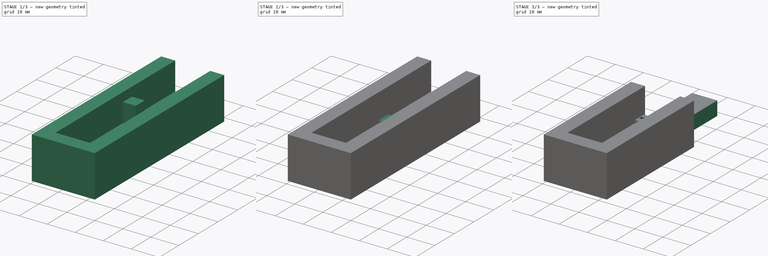
[diagram: build sequence overview — one tinted view per stage of 3, left to right]
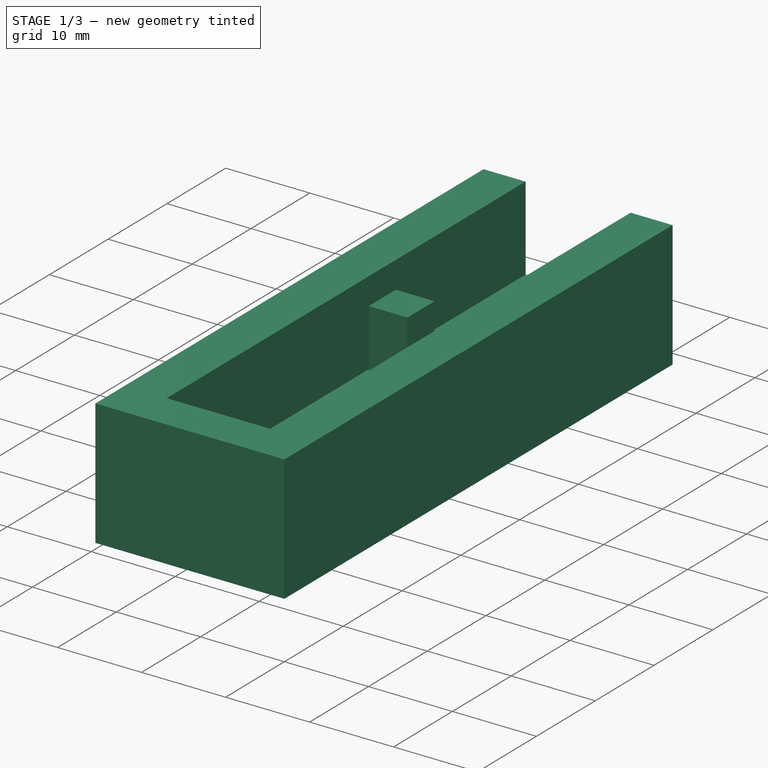
[diagram: stage 1 of 3 — iso view after this stage's code; geometry added in this stage tinted green]
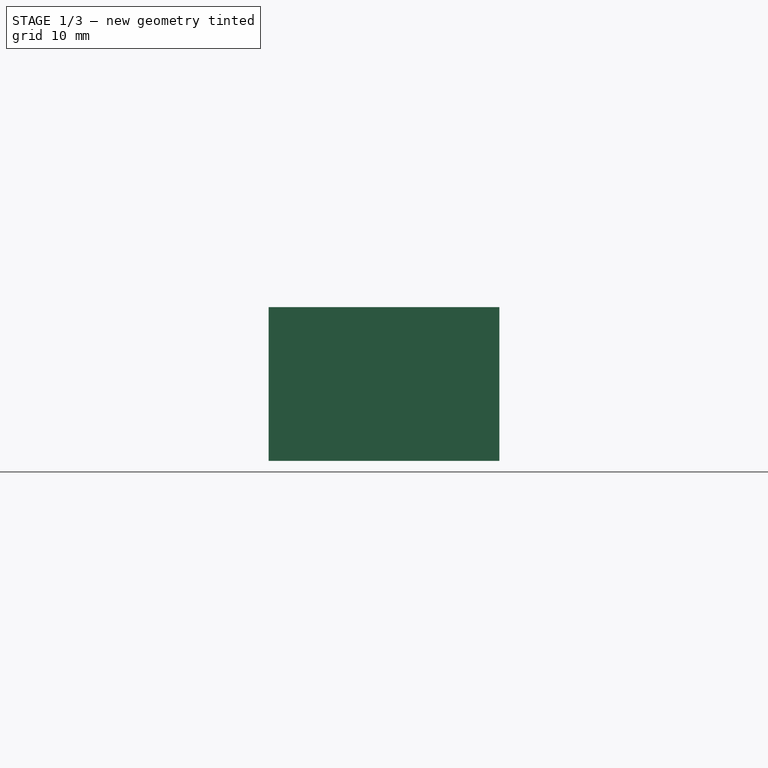
[diagram: stage 1 of 3 — front view after this stage's code; geometry added in this stage tinted green]
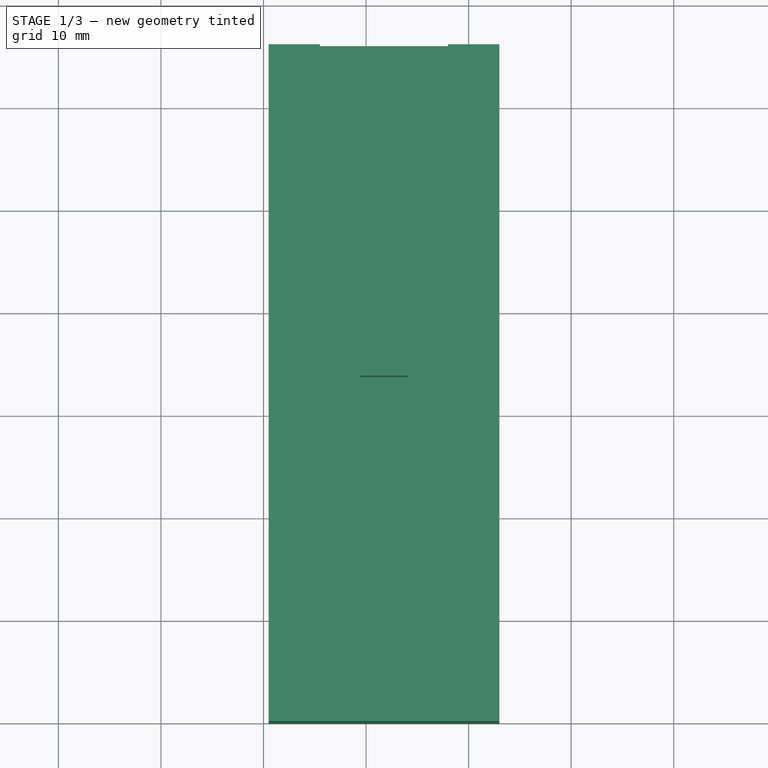
[diagram: stage 1 of 3 — top view after this stage's code; geometry added in this stage tinted green]
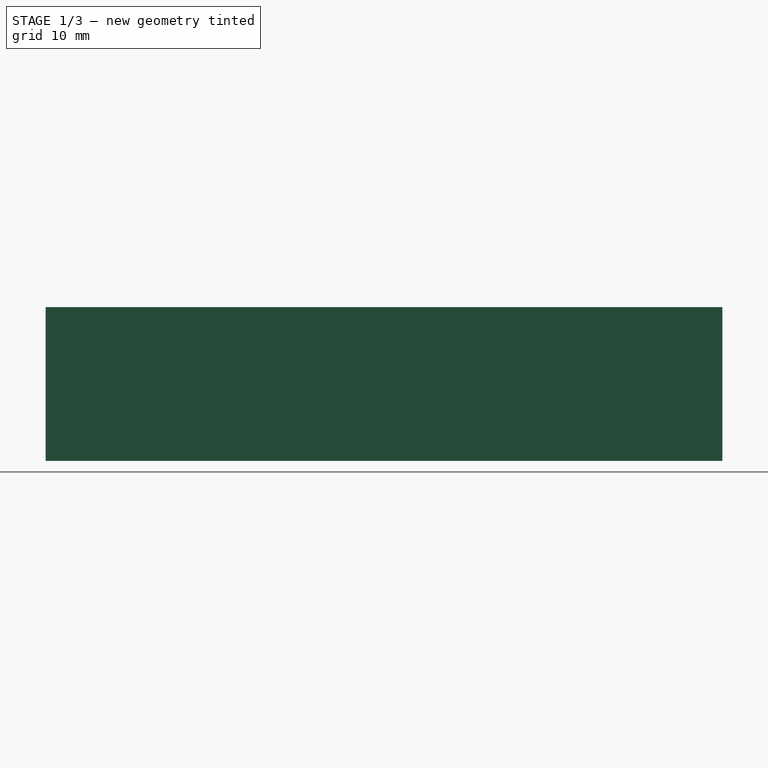
[diagram: stage 1 of 3 — right view after this stage's code; geometry added in this stage tinted green]
FCSTD DOCUMENT  (FreeCAD 0.20R29603 (Git))
Label: WhiteKey3
License: All rights reserved
LicenseURL: http://en.wikipedia.org/wiki/All_rights_reserved
objects: Sketcher::SketchObject×7, PartDesign::Pocket×5, PartDesign::Pad×1, PartDesign::Plane×1, PartDesign::Body×1
note: 21 computed .brp shape members not serialized (recipe doc carries the construction recipe); baked Part::Feature solids carry a one-line shape summary decoded from their .brp

FEATURE [Sketcher::SketchObject] Sketch
  FullyConstrained = true
  MapMode = 5
  Support = -> [XY_Plane]
  sketch-geometry (4):
    g0: LineSegment StartX=40.5 StartY=-34 StartZ=0 EndX=63 EndY=-34 EndZ=0
    g1: LineSegment StartX=63 StartY=-34 StartZ=0 EndX=63 EndY=-100 EndZ=0
    g2: LineSegment StartX=63 StartY=-100 StartZ=0 EndX=40.5 EndY=-100 EndZ=0
    g3: LineSegment StartX=40.5 StartY=-100 StartZ=0 EndX=40.5 EndY=-34 EndZ=0
  constraints (12):
    c: Coincident(g0,g1)
    c: Coincident(g1,g2)
    c: Coincident(g2,g3)
    c: Coincident(g3,g0)
    c: Horizontal(g0)
    c: Horizontal(g2)
    c: Vertical(g1)
    c: Vertical(g3)
    c: DistanceX(g-1,g0) = 40.5
    c: DistanceY(g0,g-1) = 34
    c: DistanceX(g-1,g1) = 63
    c: DistanceY(g1,g-1) = 100
FEATURE [PartDesign::Pad] Pad
  Direction = (0,0,1)
  Length = 15
  Length2 = 10
  Profile = -> Sketch
  ReferenceAxis = -> Sketch [N_Axis]
  Type = 0
FEATURE [PartDesign::Plane] DatumPlane
  Length = 97.1581
  MapMode = 5
  Placement = pos=(0,0,15) rot=(0,0,1;0rad)
  ResizeMode = 0
  Support = -> [Pad]
  Width = 109.158
FEATURE [Sketcher::SketchObject] Sketch001
  FullyConstrained = true
  MapMode = 5
  Placement = pos=(0,0,15) rot=(0,0,1;0rad)
  Support = -> [DatumPlane]
  sketch-geometry (9):
    g0: LineSegment StartX=45.5 StartY=-20 StartZ=0 EndX=58 EndY=-20 EndZ=0
    g1: LineSegment StartX=58 StartY=-20 StartZ=0 EndX=58 EndY=-95 EndZ=0
    g2: LineSegment StartX=58 StartY=-95 StartZ=0 EndX=45.5 EndY=-95 EndZ=0
    g3: LineSegment StartX=45.5 StartY=-95 StartZ=0 EndX=45.5 EndY=-20 EndZ=0
    g4: LineSegment StartX=49.45 StartY=-61.7 StartZ=0 EndX=54.05 EndY=-61.7 EndZ=0
    g5: LineSegment StartX=54.05 StartY=-61.7 StartZ=0 EndX=54.05 EndY=-66.3 EndZ=0
    g6: LineSegment StartX=54.05 StartY=-66.3 StartZ=0 EndX=49.45 EndY=-66.3 EndZ=0
    g7: LineSegment StartX=49.45 StartY=-66.3 StartZ=0 EndX=49.45 EndY=-61.7 EndZ=0
    g8: GeomPoint X=51.75 Y=-64 Z=0
  constraints (25):
    c: Coincident(g0,g1)
    c: Coincident(g1,g2)
    c: Coincident(g2,g3)
    c: Coincident(g3,g0)
    c: Horizontal(g0)
    c: Horizontal(g2)
    c: Vertical(g1)
    c: Vertical(g3)
    c: DistanceX(g-1,g2) = 45.5
    c: DistanceY(g2,g-1) = 95
    c: DistanceX(g-1,g0) = 58
    c: DistanceY(g0,g-1) = 20
    c: Coincident(g4,g5)
    c: Coincident(g5,g6)
    c: Coincident(g6,g7)
    c: Coincident(g7,g4)
    c: Horizontal(g4)
    c: Horizontal(g6)
    c: Vertical(g5)
    c: Vertical(g7)
    c: Symmetric(g4,g6,g8)
    c: DistanceX(g4,g4) = 4.6
    c: DistanceY(g5,g4) = 4.6
    c: DistanceX(g-1,g8) = 51.75
    c: DistanceY(g8,g-1) = 64
FEATURE [PartDesign::Pocket] Pocket
  BaseFeature = -> Pad
  Direction = (0,0,-1)
  Length = 10
  Length2 = 5
  Profile = -> Sketch001
  ReferenceAxis = -> Sketch001 [N_Axis]
  Type = 0
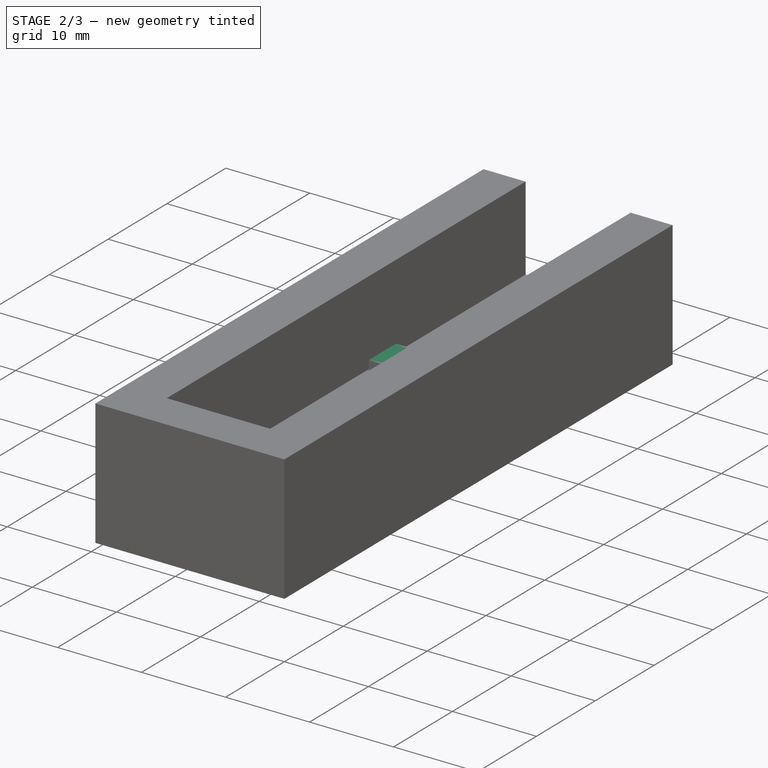
[diagram: stage 2 of 3 — iso view after this stage's code; geometry added in this stage tinted green]
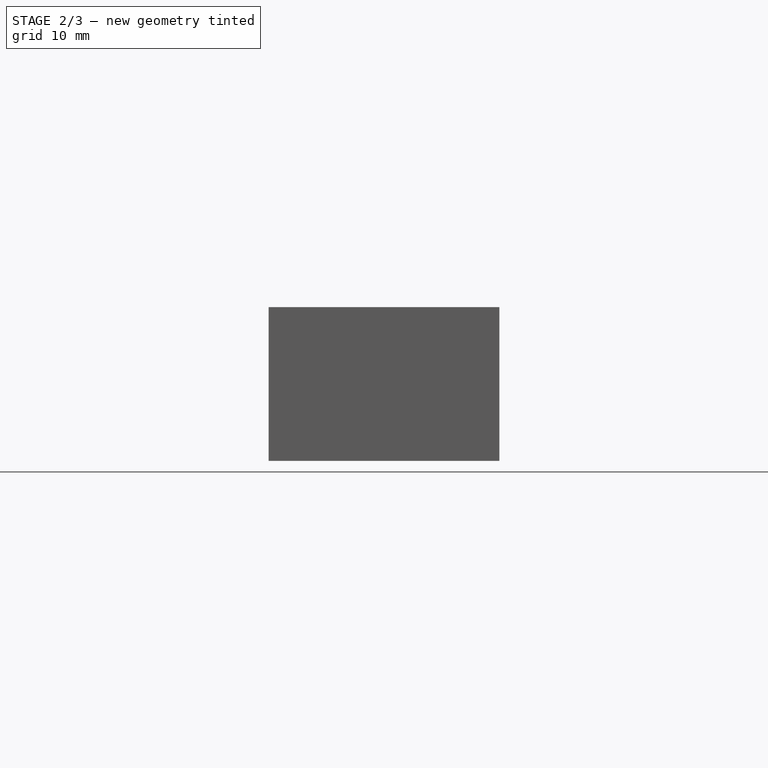
[diagram: stage 2 of 3 — front view after this stage's code; geometry added in this stage tinted green]
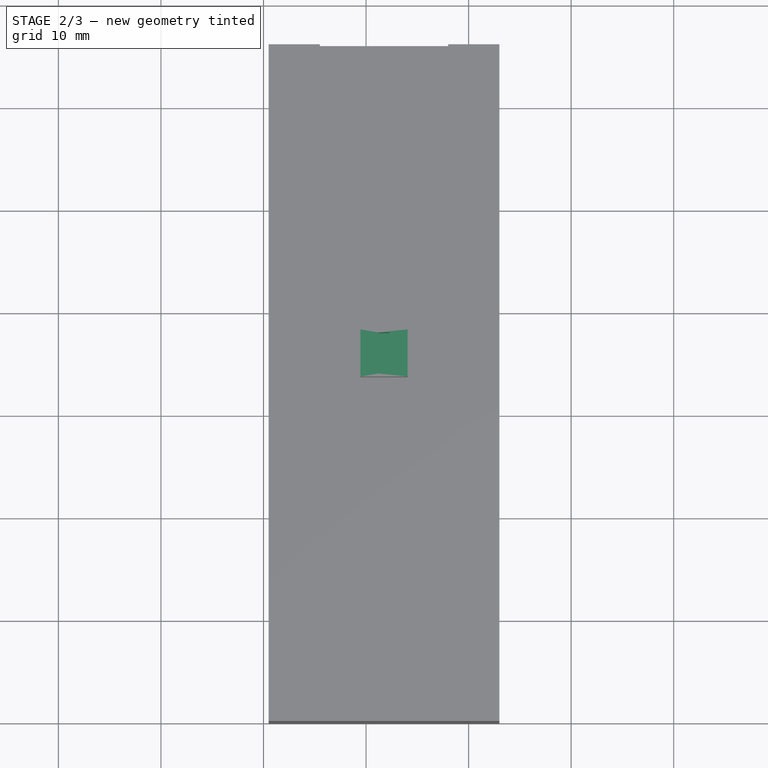
[diagram: stage 2 of 3 — top view after this stage's code; geometry added in this stage tinted green]
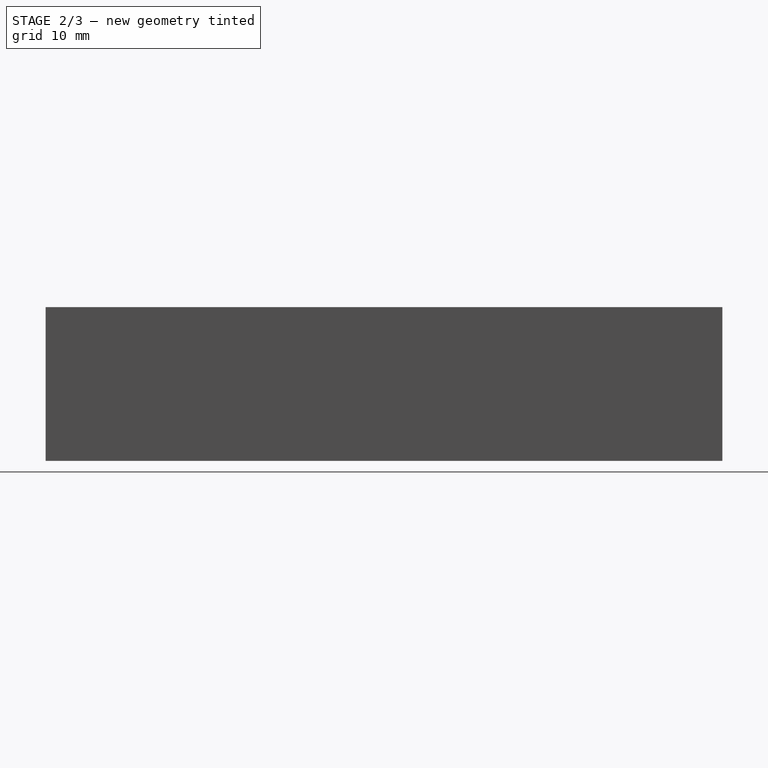
[diagram: stage 2 of 3 — right view after this stage's code; geometry added in this stage tinted green]
FEATURE [Sketcher::SketchObject] Sketch002
  FullyConstrained = true
  MapMode = 5
  Placement = pos=(0,0,15) rot=(0,0,1;0rad)
  Support = -> [DatumPlane]
  sketch-geometry (4):
    g0: LineSegment StartX=48 StartY=-60 StartZ=0 EndX=55 EndY=-60 EndZ=0
    g1: LineSegment StartX=55 StartY=-60 StartZ=0 EndX=55 EndY=-67 EndZ=0
    g2: LineSegment StartX=55 StartY=-67 StartZ=0 EndX=48 EndY=-67 EndZ=0
    g3: LineSegment StartX=48 StartY=-67 StartZ=0 EndX=48 EndY=-60 EndZ=0
  constraints (12):
    c: Coincident(g0,g1)
    c: Coincident(g1,g2)
    c: Coincident(g2,g3)
    c: Coincident(g3,g0)
    c: Horizontal(g0)
    c: Horizontal(g2)
    c: Vertical(g1)
    c: Vertical(g3)
    c: DistanceX(g-1,g0) = 48
    c: DistanceY(g0,g-1) = 60
    c: DistanceX(g-1,g1) = 55
    c: DistanceY(g1,g-1) = 67
FEATURE [PartDesign::Pocket] Pocket001
  BaseFeature = -> Pocket
  Direction = (0,0,-1)
  Length = 5.8
  Length2 = 5
  Profile = -> Sketch002
  ReferenceAxis = -> Sketch002 [N_Axis]
  Type = 0
FEATURE [Sketcher::SketchObject] Sketch003
  FullyConstrained = true
  MapMode = 5
  Placement = pos=(0,0,15) rot=(0,0,1;0rad)
  Support = -> [DatumPlane]
  sketch-geometry (16):
    g0: LineSegment StartX=52.3 StartY=-61 StartZ=0 EndX=55 EndY=-61 EndZ=0
    g1: LineSegment StartX=55 StartY=-61 StartZ=0 EndX=55 EndY=-63.35 EndZ=0
    g2: LineSegment StartX=55 StartY=-63.35 StartZ=0 EndX=52.3 EndY=-63.35 EndZ=0
    g3: LineSegment StartX=52.3 StartY=-63.35 StartZ=0 EndX=52.3 EndY=-61 EndZ=0
    g4: LineSegment StartX=49 StartY=-61 StartZ=0 EndX=51.2 EndY=-61 EndZ=0
    g5: LineSegment StartX=51.2 StartY=-61 StartZ=0 EndX=51.2 EndY=-63.35 EndZ=0
    g6: LineSegment StartX=51.2 StartY=-63.35 StartZ=0 EndX=49 EndY=-63.35 EndZ=0
    g7: LineSegment StartX=49 StartY=-63.35 StartZ=0 EndX=49 EndY=-61 EndZ=0
    g8: LineSegment StartX=49 StartY=-67 StartZ=0 EndX=51.2 EndY=-67 EndZ=0
    g9: LineSegment StartX=51.2 StartY=-67 StartZ=0 EndX=51.2 EndY=-64.65 EndZ=0
    g10: LineSegment StartX=51.2 StartY=-64.65 StartZ=0 EndX=49 EndY=-64.65 EndZ=0
    g11: LineSegment StartX=49 StartY=-64.65 StartZ=0 EndX=49 EndY=-67 EndZ=0
    g12: LineSegment StartX=52.3 StartY=-64.65 StartZ=0 EndX=55 EndY=-64.65 EndZ=0
    g13: LineSegment StartX=55 StartY=-64.65 StartZ=0 EndX=55 EndY=-67 EndZ=0
    g14: LineSegment StartX=55 StartY=-67 StartZ=0 EndX=52.3 EndY=-67 EndZ=0
    g15: LineSegment StartX=52.3 StartY=-67 StartZ=0 EndX=52.3 EndY=-64.65 EndZ=0
  constraints (48):
    c: Coincident(g0,g1)
    c: Coincident(g1,g2)
    c: Coincident(g2,g3)
    c: Coincident(g3,g0)
    c: Horizontal(g0)
    c: Horizontal(g2)
    c: Vertical(g1)
    c: Vertical(g3)
    c: Coincident(g4,g5)
    c: Coincident(g5,g6)
    c: Coincident(g6,g7)
    c: Coincident(g7,g4)
    c: Horizontal(g4)
    c: Horizontal(g6)
    c: Vertical(g5)
    c: Vertical(g7)
    c: Coincident(g8,g9)
    c: Coincident(g9,g10)
    c: Coincident(g10,g11)
    c: Coincident(g11,g8)
    c: Horizontal(g8)
    c: Horizontal(g10)
    c: Vertical(g9)
    c: Vertical(g11)
    c: Coincident(g12,g13)
    c: Coincident(g13,g14)
    c: Coincident(g14,g15)
    c: Coincident(g15,g12)
    c: Horizontal(g12)
    c: Horizontal(g14)
    c: Vertical(g13)
    c: Vertical(g15)
    c: DistanceX(g-1,g5) = 51.2
    c: DistanceX(g-1,g2) = 52.3
    c: DistanceX(g-1,g9) = 51.2
    c: DistanceX(g-1,g12) = 52.3
    c: DistanceY(g5,g-1) = 63.35
    c: DistanceY(g2,g-1) = 63.35
    c: DistanceY(g12,g-1) = 64.65
    c: DistanceY(g9,g-1) = 64.65
    c: DistanceY(g0,g-1) = 61
    c: DistanceY(g4,g-1) = 61
    c: DistanceY(g13,g-1) = 67
    c: DistanceY(g8,g-1) = 67
    c: DistanceX(g-1,g13) = 55
    c: DistanceX(g-1,g0) = 55
    c: DistanceX(g-1,g8) = 49
    c: DistanceX(g-1,g4) = 49
FEATURE [Sketcher::SketchObject] Sketch004
  FullyConstrained = true
  MapMode = 5
  Placement = pos=(0,0,15) rot=(0,0,1;0rad)
  Support = -> [DatumPlane]
  sketch-geometry (4):
    g0: LineSegment StartX=51.2 StartY=-62 StartZ=0 EndX=52.3 EndY=-62 EndZ=0
    g1: LineSegment StartX=52.3 StartY=-62 StartZ=0 EndX=52.3 EndY=-66 EndZ=0
    g2: LineSegment StartX=52.3 StartY=-66 StartZ=0 EndX=51.2 EndY=-66 EndZ=0
    g3: LineSegment StartX=51.2 StartY=-66 StartZ=0 EndX=51.2 EndY=-62 EndZ=0
  constraints (12):
    c: Coincident(g0,g1)
    c: Coincident(g1,g2)
    c: Coincident(g2,g3)
    c: Coincident(g3,g0)
    c: Horizontal(g0)
    c: Horizontal(g2)
    c: Vertical(g1)
    c: Vertical(g3)
    c: DistanceY(g0,g-1) = 62
    c: DistanceY(g1,g-1) = 66
    c: DistanceX(g-1,g0) = 51.2
    c: DistanceX(g-1,g1) = 52.3
FEATURE [PartDesign::Pocket] Pocket002
  BaseFeature = -> Pocket001
  Direction = (0,0,-1)
  Length = 10
  Length2 = 5
  Profile = -> Sketch004
  ReferenceAxis = -> Sketch004 [N_Axis]
  Type = 0
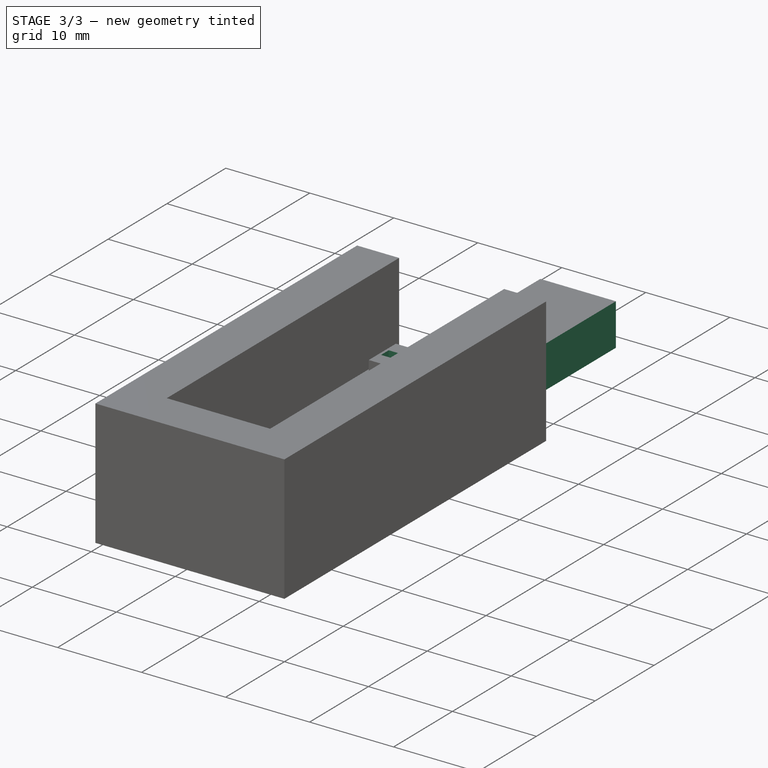
[diagram: stage 3 of 3 — iso view after this stage's code; geometry added in this stage tinted green]
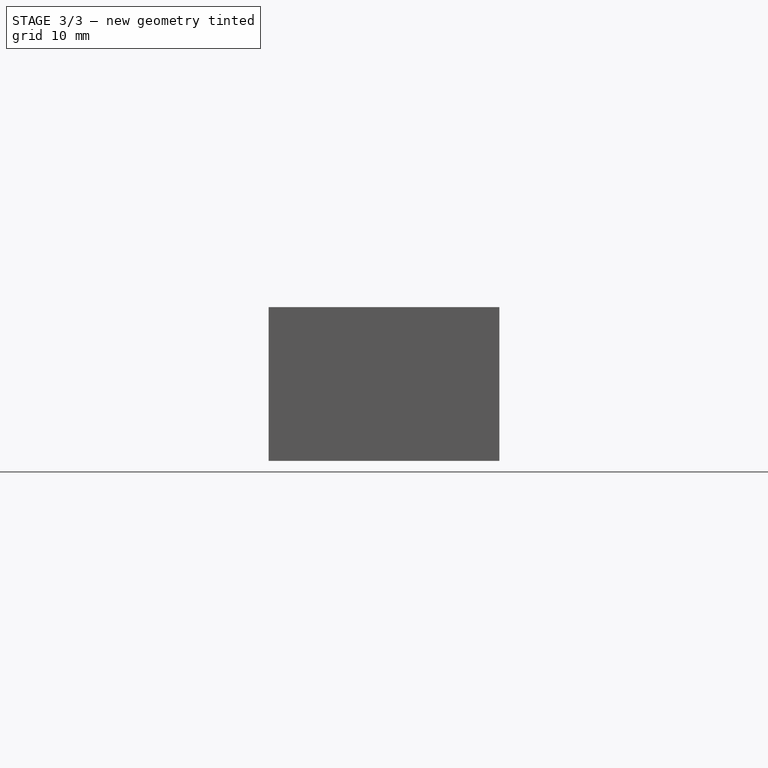
[diagram: stage 3 of 3 — front view after this stage's code; geometry added in this stage tinted green]
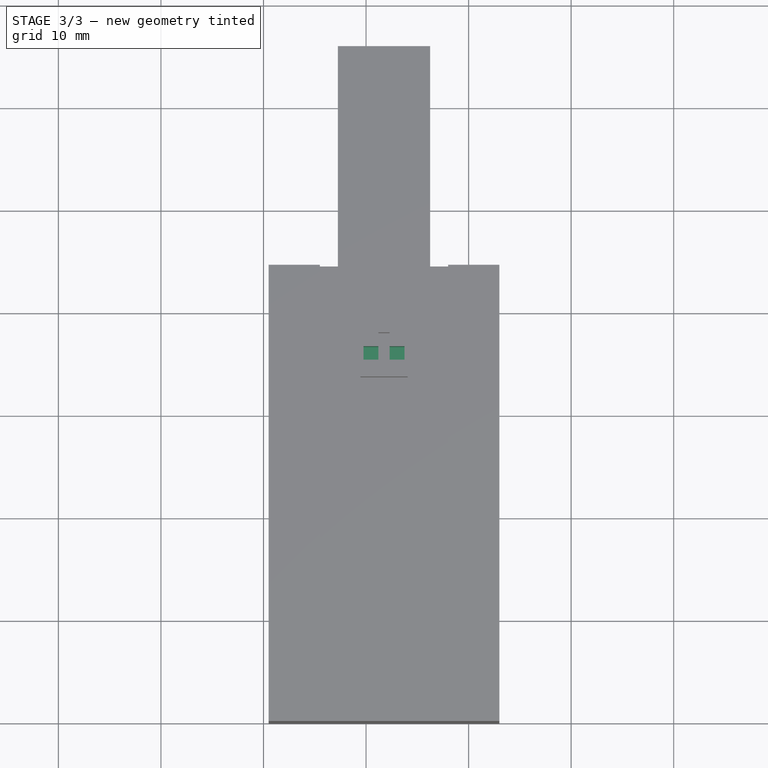
[diagram: stage 3 of 3 — top view after this stage's code; geometry added in this stage tinted green]
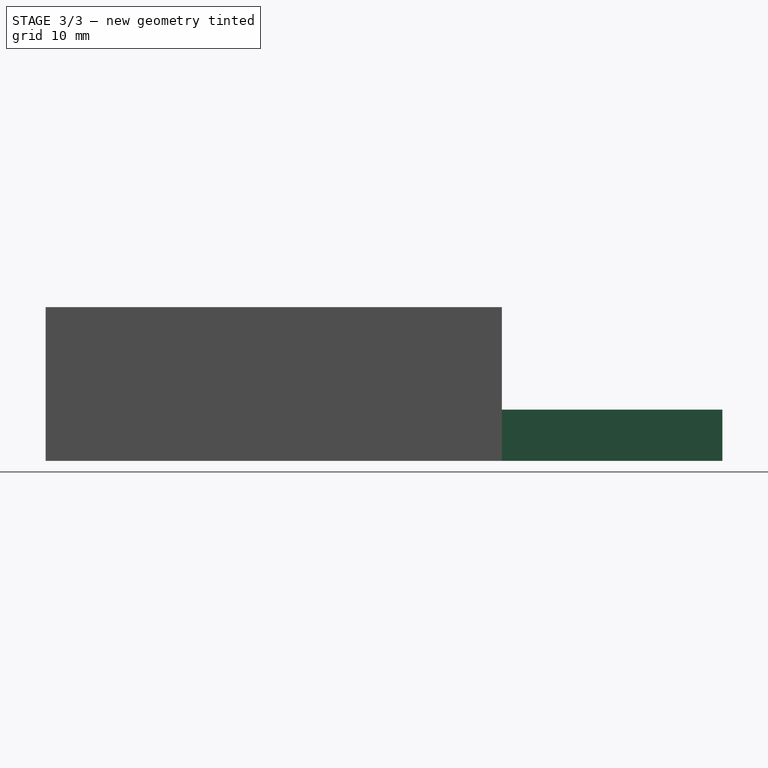
[diagram: stage 3 of 3 — right view after this stage's code; geometry added in this stage tinted green]
FEATURE [Sketcher::SketchObject] Sketch005
  FullyConstrained = true
  MapMode = 5
  Placement = pos=(0,0,15) rot=(0,0,1;0rad)
  Support = -> [DatumPlane]
  sketch-geometry (4):
    g0: LineSegment StartX=49.75 StartY=-63.35 StartZ=0 EndX=53.75 EndY=-63.35 EndZ=0
    g1: LineSegment StartX=53.75 StartY=-63.35 StartZ=0 EndX=53.75 EndY=-64.65 EndZ=0
    g2: LineSegment StartX=53.75 StartY=-64.65 StartZ=0 EndX=49.75 EndY=-64.65 EndZ=0
    g3: LineSegment StartX=49.75 StartY=-64.65 StartZ=0 EndX=49.75 EndY=-63.35 EndZ=0
  constraints (12):
    c: Coincident(g0,g1)
    c: Coincident(g1,g2)
    c: Coincident(g2,g3)
    c: Coincident(g3,g0)
    c: Horizontal(g0)
    c: Horizontal(g2)
    c: Vertical(g1)
    c: Vertical(g3)
    c: DistanceX(g-1,g0) = 49.75
    c: DistanceX(g-1,g1) = 53.75
    c: DistanceY(g0,g-1) = 63.35
    c: DistanceY(g1,g-1) = 64.65
FEATURE [PartDesign::Pocket] Pocket003
  BaseFeature = -> Pocket002
  Direction = (0,0,-1)
  Length = 10
  Length2 = 5
  Profile = -> Sketch005
  ReferenceAxis = -> Sketch005 [N_Axis]
  Type = 0
FEATURE [Sketcher::SketchObject] Sketch007
  FullyConstrained = true
  MapMode = 5
  Placement = pos=(0,0,15) rot=(0,0,1;0rad)
  Support = -> [DatumPlane]
  sketch-geometry (8):
    g0: LineSegment StartX=56.25 StartY=-29 StartZ=0 EndX=76 EndY=-29 EndZ=0
    g1: LineSegment StartX=76 StartY=-29 StartZ=0 EndX=76 EndY=-55.5 EndZ=0
    g2: LineSegment StartX=76 StartY=-55.5 StartZ=0 EndX=56.25 EndY=-55.5 EndZ=0
    g3: LineSegment StartX=56.25 StartY=-55.5 StartZ=0 EndX=56.25 EndY=-29 EndZ=0
    g4: LineSegment StartX=30 StartY=-29 StartZ=0 EndX=47.25 EndY=-29 EndZ=0
    g5: LineSegment StartX=47.25 StartY=-29 StartZ=0 EndX=47.25 EndY=-55.5 EndZ=0
    g6: LineSegment StartX=47.25 StartY=-55.5 StartZ=0 EndX=30 EndY=-55.5 EndZ=0
    g7: LineSegment StartX=30 StartY=-55.5 StartZ=0 EndX=30 EndY=-29 EndZ=0
  constraints (24):
    c: Coincident(g0,g1)
    c: Coincident(g1,g2)
    c: Coincident(g2,g3)
    c: Coincident(g3,g0)
    c: Horizontal(g0)
    c: Horizontal(g2)
    c: Vertical(g1)
    c: Vertical(g3)
    c: DistanceY(g0,g-1) = 29
    c: DistanceY(g2,g-1) = 55.5
    c: DistanceX(g-1,g2) = 56.25
    c: DistanceX(g-1,g0) = 76
    c: Coincident(g4,g5)
    c: Coincident(g5,g6)
    c: Coincident(g6,g7)
    c: Coincident(g7,g4)
    c: Horizontal(g4)
    c: Horizontal(g6)
    c: Vertical(g5)
    c: Vertical(g7)
    c: DistanceX(g-1,g4) = 47.25
    c: DistanceX(g-1,g6) = 30
    c: DistanceY(g4,g-1) = 29
    c: DistanceY(g6,g-1) = 55.5
FEATURE [PartDesign::Pocket] Pocket004
  BaseFeature = -> Pocket003
  Direction = (0,0,-1)
  Length = 20
  Length2 = 5
  Profile = -> Sketch007
  ReferenceAxis = -> Sketch007 [N_Axis]
  Type = 0
FEATURE [PartDesign::Body] Body
  Group = -> [Sketch,Pad,DatumPlane,Sketch001,Pocket,Sketch002,Pocket001,Sketch003,Sketch004,Pocket002,Sketch005,Pocket003,Sketch007,Pocket004]
  Origin = -> Origin
  Tip = -> Pocket004
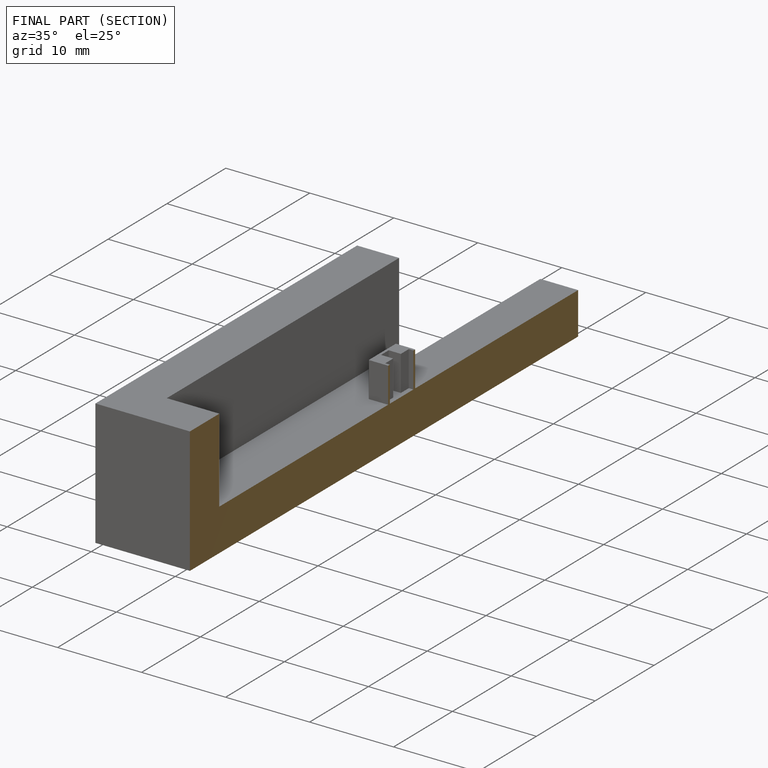
[diagram: finished part — half-section view (interior)]
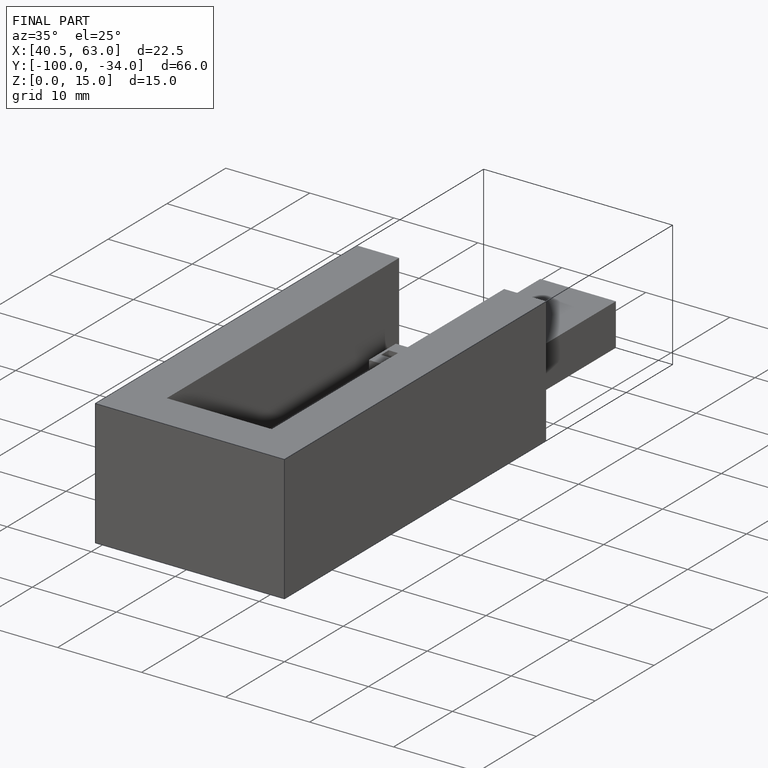
[diagram: finished part — iso view with bounding-box wireframe]
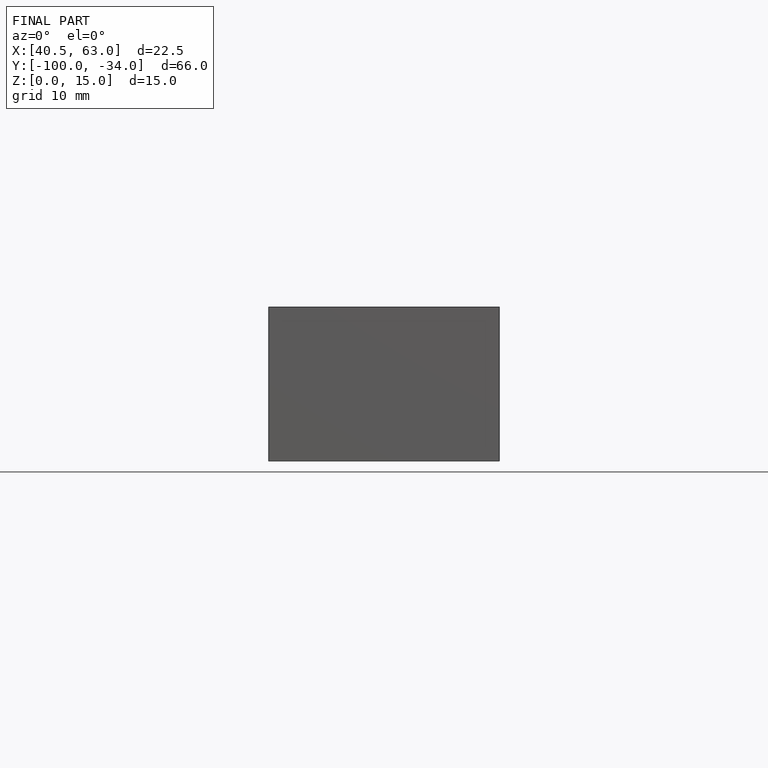
[diagram: finished part — front view with bounding-box wireframe]
